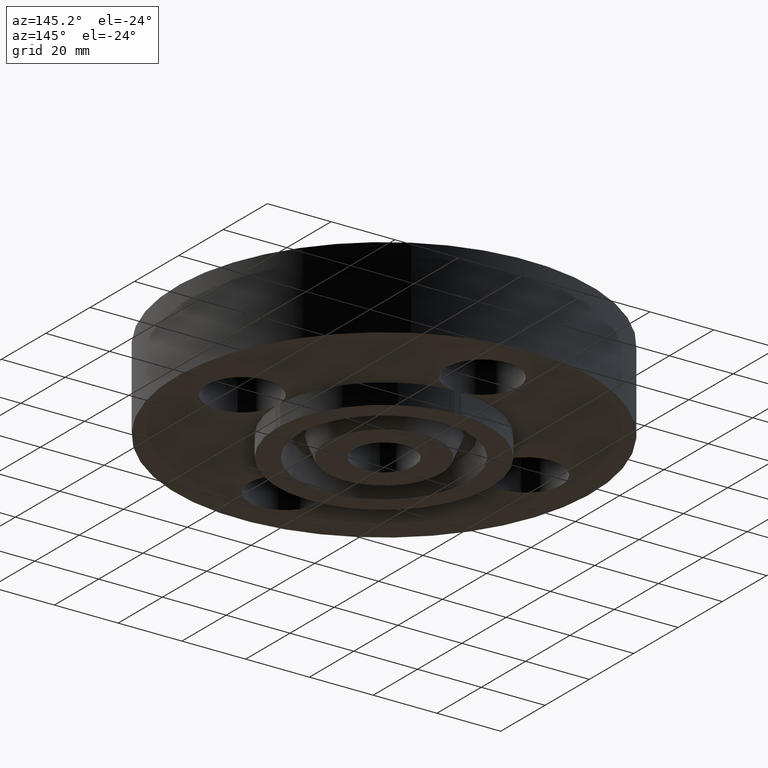
[diagram: clean part render]
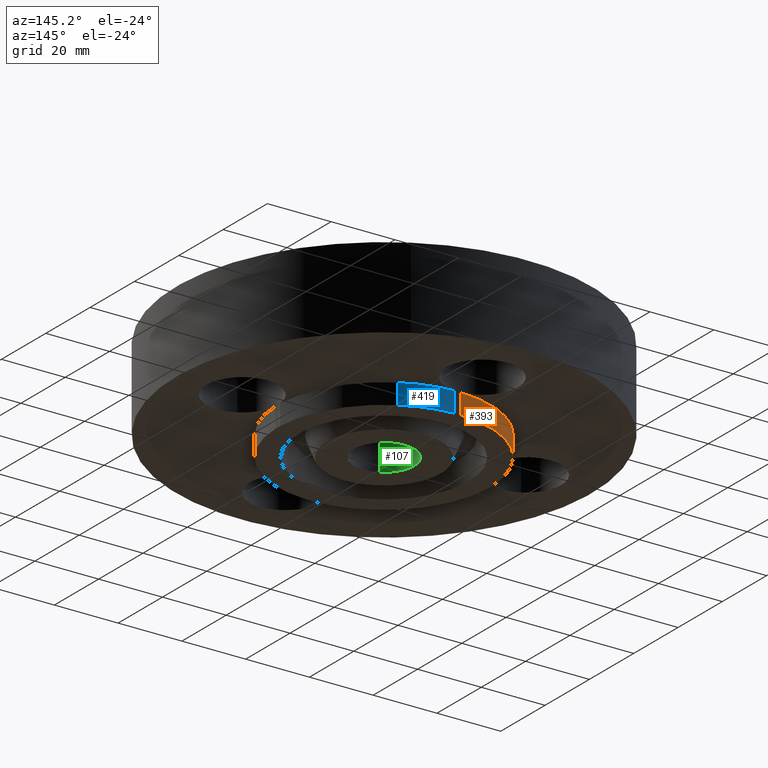
[diagram: same view with three faces highlighted in distinct colors, each labeled with its STEP entity id]
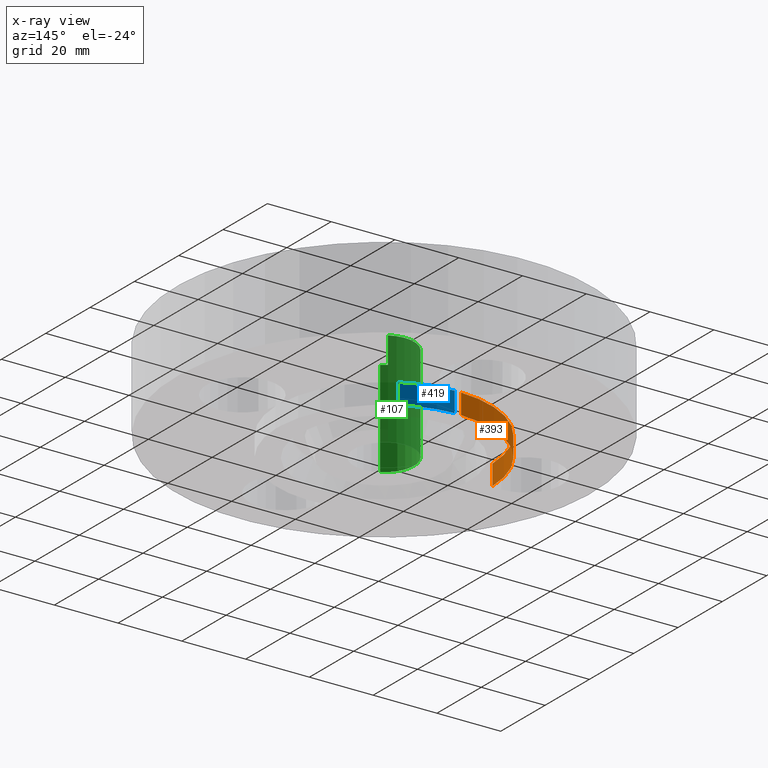
[diagram: x-ray of the same camera — body ghosted, the three highlighted faces saturated]
A machine part, auxiliary view with three faces highlighted in distinct colors.
The next image is the same camera in x-ray (body ghosted, the three faces saturated) — at least one of them is partly hidden behind the body in this view.
Their STEP definitions:

[orange] entity #393 — the highlighted cylindrical surface (partial cylindrical patch) has radius 33.3375 mm, axis along (0, 0, -1).
#230=AXIS2_PLACEMENT_3D('Circle Axis2P3D',#228,#229,$) ;
#295=AXIS2_PLACEMENT_3D('Cylinder Axis2P3D',#292,#293,#294) ;
#370=AXIS2_PLACEMENT_3D('Circle Axis2P3D',#368,#369,$) ;
#225=CARTESIAN_POINT('Vertex',(-1.31187321429,0.0405576089,-0.250000000001)) ;
#228=CARTESIAN_POINT('Axis2P3D Location',(0.,0.,-0.250000000001)) ;
#232=CARTESIAN_POINT('Vertex',(-0.0405576089,1.31187321429,-0.250000000001)) ;
#292=CARTESIAN_POINT('Axis2P3D Location',(0.,0.,0.565000000002)) ;
#368=CARTESIAN_POINT('Axis2P3D Location',(0.,0.,1.39870617276E-016)) ;
#372=CARTESIAN_POINT('Vertex',(-1.31187321429,0.0405576089,1.39870617276E-016)) ;
#374=CARTESIAN_POINT('Vertex',(-0.0405576089,1.31187321429,1.39870617276E-016)) ;
#377=CARTESIAN_POINT('Line Origine',(-0.0405576089,1.31187321429,-0.125)) ;
#382=CARTESIAN_POINT('Line Origine',(-1.31187321429,0.0405576089,-0.125)) ;
#229=DIRECTION('Axis2P3D Direction',(0.,0.,-0.0393700787402)) ;
#293=DIRECTION('Axis2P3D Direction',(0.,0.,-0.0393700787402)) ;
#294=DIRECTION('Axis2P3D XDirection',(0.0188750212049,0.0345504945626,0.)) ;
#369=DIRECTION('Axis2P3D Direction',(0.,0.,-0.0393700787402)) ;
#378=DIRECTION('Vector Direction',(0.,0.,-0.0393700787402)) ;
#383=DIRECTION('Vector Direction',(0.,0.,-0.0393700787402)) ;
#379=VECTOR('Line Direction',#378,0.0393700787402) ;
#384=VECTOR('Line Direction',#383,0.0393700787402) ;
#388=ORIENTED_EDGE('',*,*,#376,.T.) ;
#389=ORIENTED_EDGE('',*,*,#381,.T.) ;
#390=ORIENTED_EDGE('',*,*,#234,.F.) ;
#391=ORIENTED_EDGE('',*,*,#386,.F.) ;
#393=ADVANCED_FACE('PartBody',(#392),#296,.T.) ;
#231=CIRCLE('generated circle',#230,1.31250000001) ;
#371=CIRCLE('generated circle',#370,1.31250000001) ;
#296=CYLINDRICAL_SURFACE('generated cylinder',#295,1.31250000001) ;
#234=EDGE_CURVE('',#226,#233,#231,.T.) ;
#376=EDGE_CURVE('',#373,#375,#371,.T.) ;
#381=EDGE_CURVE('',#375,#233,#380,.T.) ;
#386=EDGE_CURVE('',#373,#226,#385,.T.) ;
#387=EDGE_LOOP('',(#388,#389,#390,#391)) ;
#392=FACE_OUTER_BOUND('',#387,.T.) ;
#380=LINE('Line',#377,#379) ;
#385=LINE('Line',#382,#384) ;
#226=VERTEX_POINT('',#225) ;
#233=VERTEX_POINT('',#232) ;
#373=VERTEX_POINT('',#372) ;
#375=VERTEX_POINT('',#374) ;

[blue] entity #419 — the highlighted cylindrical surface (partial cylindrical patch) has radius 33.3375 mm, axis along (0, 0, -1).
#244=AXIS2_PLACEMENT_3D('Circle Axis2P3D',#242,#243,$) ;
#295=AXIS2_PLACEMENT_3D('Cylinder Axis2P3D',#292,#293,#294) ;
#396=AXIS2_PLACEMENT_3D('Circle Axis2P3D',#394,#395,$) ;
#239=CARTESIAN_POINT('Vertex',(0.0405576089,1.31187321429,-0.250000000001)) ;
#242=CARTESIAN_POINT('Axis2P3D Location',(0.,0.,-0.250000000001)) ;
#246=CARTESIAN_POINT('Vertex',(0.629246019421,1.15182711249,-0.250000000001)) ;
#292=CARTESIAN_POINT('Axis2P3D Location',(0.,0.,0.565000000002)) ;
#394=CARTESIAN_POINT('Axis2P3D Location',(0.,0.,1.39870617276E-016)) ;
#398=CARTESIAN_POINT('Vertex',(0.0405576089,1.31187321429,1.39870617276E-016)) ;
#400=CARTESIAN_POINT('Vertex',(0.629246019421,1.15182711249,6.99353086378E-017)) ;
#403=CARTESIAN_POINT('Line Origine',(0.629246019421,1.15182711249,-0.125)) ;
#408=CARTESIAN_POINT('Line Origine',(0.0405576089,1.31187321429,-0.125)) ;
#243=DIRECTION('Axis2P3D Direction',(0.,0.,-0.0393700787402)) ;
#293=DIRECTION('Axis2P3D Direction',(0.,0.,-0.0393700787402)) ;
#294=DIRECTION('Axis2P3D XDirection',(0.0188750212049,0.0345504945626,0.)) ;
#395=DIRECTION('Axis2P3D Direction',(0.,0.,-0.0393700787402)) ;
#404=DIRECTION('Vector Direction',(0.,0.,-0.0393700787402)) ;
#409=DIRECTION('Vector Direction',(0.,0.,-0.0393700787402)) ;
#405=VECTOR('Line Direction',#404,0.0393700787402) ;
#410=VECTOR('Line Direction',#409,0.0393700787402) ;
#414=ORIENTED_EDGE('',*,*,#402,.T.) ;
#415=ORIENTED_EDGE('',*,*,#407,.F.) ;
#416=ORIENTED_EDGE('',*,*,#248,.F.) ;
#417=ORIENTED_EDGE('',*,*,#412,.F.) ;
#419=ADVANCED_FACE('PartBody',(#418),#296,.T.) ;
#245=CIRCLE('generated circle',#244,1.31250000001) ;
#397=CIRCLE('generated circle',#396,1.31250000001) ;
#296=CYLINDRICAL_SURFACE('generated cylinder',#295,1.31250000001) ;
#248=EDGE_CURVE('',#240,#247,#245,.T.) ;
#402=EDGE_CURVE('',#399,#401,#397,.T.) ;
#407=EDGE_CURVE('',#247,#401,#406,.F.) ;
#412=EDGE_CURVE('',#399,#240,#411,.T.) ;
#413=EDGE_LOOP('',(#414,#415,#416,#417)) ;
#418=FACE_OUTER_BOUND('',#413,.T.) ;
#406=LINE('Line',#403,#405) ;
#411=LINE('Line',#408,#410) ;
#240=VERTEX_POINT('',#239) ;
#247=VERTEX_POINT('',#246) ;
#399=VERTEX_POINT('',#398) ;
#401=VERTEX_POINT('',#400) ;

[green] entity #107 — the highlighted cylindrical surface (partial cylindrical patch) has radius 9.4234 mm, axis along (0, 0, -1).
#69=AXIS2_PLACEMENT_3D('Circle Axis2P3D',#67,#68,$) ;
#80=AXIS2_PLACEMENT_3D('Cylinder Axis2P3D',#77,#78,#79) ;
#91=AXIS2_PLACEMENT_3D('Circle Axis2P3D',#89,#90,$) ;
#62=CARTESIAN_POINT('Vertex',(0.177866874823,0.325583130463,0.940000000004)) ;
#64=CARTESIAN_POINT('Vertex',(-0.177866874823,-0.325583130463,0.940000000004)) ;
#67=CARTESIAN_POINT('Axis2P3D Location',(3.49676543189E-017,-8.74191357973E-018,0.940000000004)) ;
#77=CARTESIAN_POINT('Axis2P3D Location',(0.,0.,0.565000000002)) ;
#82=CARTESIAN_POINT('Line Origine',(-0.177866874823,-0.325583130463,0.345000000001)) ;
#86=CARTESIAN_POINT('Vertex',(-0.177866874823,-0.325583130463,-0.250000000001)) ;
#89=CARTESIAN_POINT('Axis2P3D Location',(0.,0.,-0.250000000001)) ;
#93=CARTESIAN_POINT('Vertex',(0.177866874823,0.325583130463,-0.250000000001)) ;
#96=CARTESIAN_POINT('Line Origine',(0.177866874823,0.325583130463,0.345000000001)) ;
#68=DIRECTION('Axis2P3D Direction',(0.,0.,-0.0393700787402)) ;
#78=DIRECTION('Axis2P3D Direction',(0.,0.,-0.0393700787402)) ;
#79=DIRECTION('Axis2P3D XDirection',(0.0188750212049,0.0345504945626,0.)) ;
#83=DIRECTION('Vector Direction',(0.,0.,-0.0393700787402)) ;
#90=DIRECTION('Axis2P3D Direction',(0.,0.,-0.0393700787402)) ;
#97=DIRECTION('Vector Direction',(0.,0.,-0.0393700787402)) ;
#84=VECTOR('Line Direction',#83,0.0393700787402) ;
#98=VECTOR('Line Direction',#97,0.0393700787402) ;
#102=ORIENTED_EDGE('',*,*,#88,.T.) ;
#103=ORIENTED_EDGE('',*,*,#95,.T.) ;
#104=ORIENTED_EDGE('',*,*,#100,.F.) ;
#105=ORIENTED_EDGE('',*,*,#71,.F.) ;
#107=ADVANCED_FACE('PartBody',(#106),#81,.F.) ;
#70=CIRCLE('generated circle',#69,0.371000000001) ;
#92=CIRCLE('generated circle',#91,0.371000000001) ;
#81=CYLINDRICAL_SURFACE('generated cylinder',#80,0.371000000001) ;
#71=EDGE_CURVE('',#65,#63,#70,.T.) ;
#88=EDGE_CURVE('',#65,#87,#85,.T.) ;
#95=EDGE_CURVE('',#87,#94,#92,.T.) ;
#100=EDGE_CURVE('',#63,#94,#99,.T.) ;
#101=EDGE_LOOP('',(#102,#103,#104,#105)) ;
#106=FACE_OUTER_BOUND('',#101,.T.) ;
#85=LINE('Line',#82,#84) ;
#99=LINE('Line',#96,#98) ;
#63=VERTEX_POINT('',#62) ;
#65=VERTEX_POINT('',#64) ;
#87=VERTEX_POINT('',#86) ;
#94=VERTEX_POINT('',#93) ;